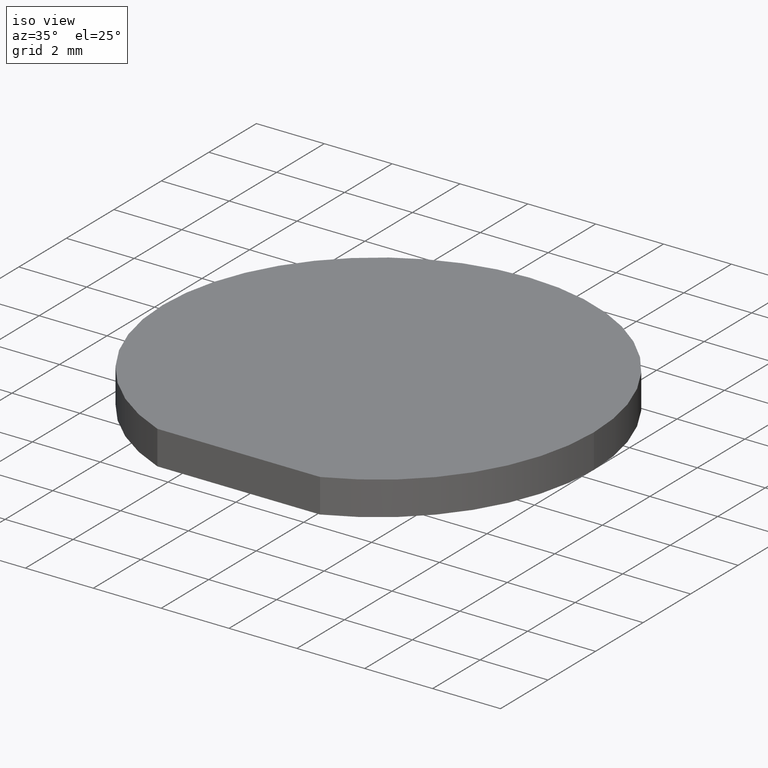
[diagram: clean part render]
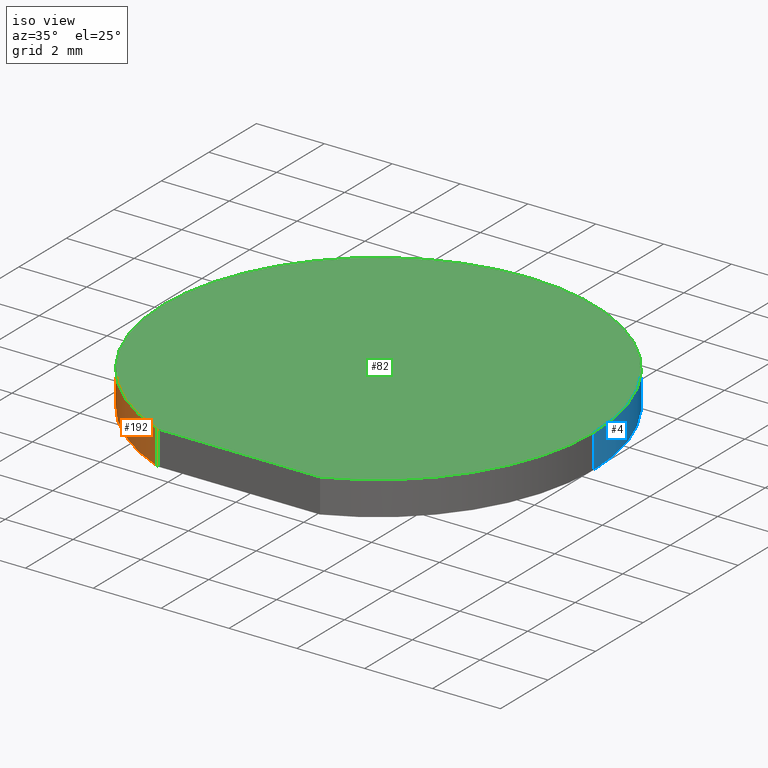
[diagram: same view with three faces highlighted in distinct colors, each labeled with its STEP entity id]
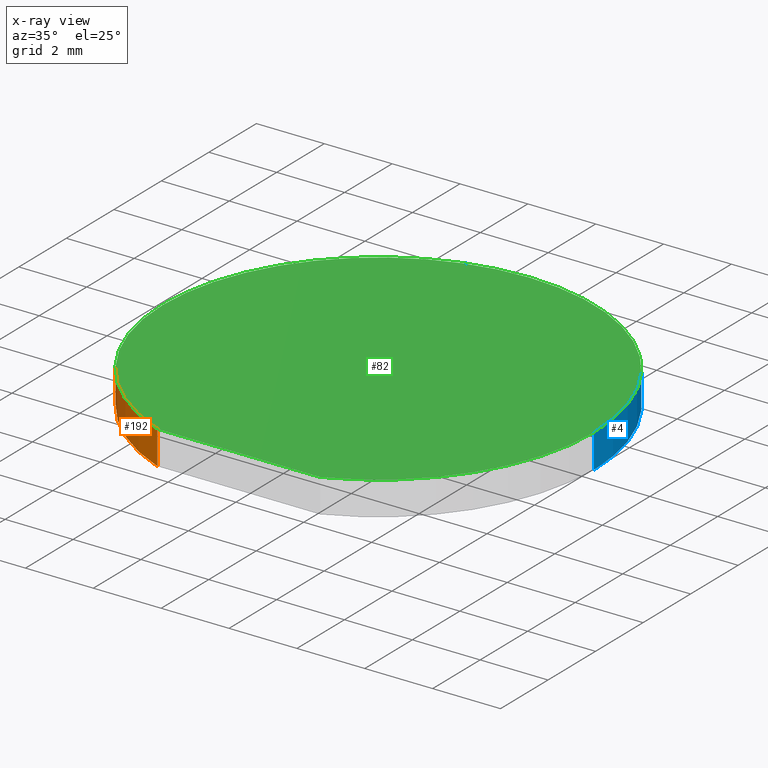
[diagram: x-ray of the same camera — body ghosted, the three highlighted faces saturated]
A machine part, iso view with three faces highlighted in distinct colors.
The next image is the same camera in x-ray (body ghosted, the three faces saturated) — at least one of them is partly hidden behind the body in this view.
Their STEP definitions:

[orange] entity #192 — the highlighted cylindrical surface (partial cylindrical patch) has radius 6.35 mm, axis along (-0, -0, -1).
#7 = VERTEX_POINT ( 'NONE', #53 ) ;
#8 = AXIS2_PLACEMENT_3D ( 'NONE', #169, #133, #86 ) ;
#17 = CARTESIAN_POINT ( 'NONE',  ( -2.397519551536545723, -5.879999999999999893, 1.000000000000000000 ) ) ;
#18 = FACE_OUTER_BOUND ( 'NONE', #78, .T. ) ;
#21 = DIRECTION ( 'NONE',  ( 0.0000000000000000000, 0.0000000000000000000, 1.000000000000000000 ) ) ;
#32 = CARTESIAN_POINT ( 'NONE',  ( 0.0000000000000000000, 0.0000000000000000000, 1.000000000000000000 ) ) ;
#33 = DIRECTION ( 'NONE',  ( 1.000000000000000000, 0.0000000000000000000, 0.0000000000000000000 ) ) ;
#34 = VECTOR ( 'NONE', #122, 1000.000000000000000 ) ;
#35 = DIRECTION ( 'NONE',  ( -0.0000000000000000000, -0.0000000000000000000, -1.000000000000000000 ) ) ;
#53 = CARTESIAN_POINT ( 'NONE',  ( -6.349999999999999645, 0.0000000000000000000, 0.0000000000000000000 ) ) ;
#64 = AXIS2_PLACEMENT_3D ( 'NONE', #111, #35, #89 ) ;
#71 = CARTESIAN_POINT ( 'NONE',  ( -6.349999999999999645, 0.0000000000000000000, 1.000000000000000000 ) ) ;
#72 = EDGE_CURVE ( 'NONE', #99, #7, #204, .T. ) ;
#78 = EDGE_LOOP ( 'NONE', ( #132, #166, #186, #95 ) ) ;
#85 = CIRCLE ( 'NONE', #91, 6.349999999999999645 ) ;
#86 = DIRECTION ( 'NONE',  ( 1.000000000000000000, 0.0000000000000000000, 0.0000000000000000000 ) ) ;
#89 = DIRECTION ( 'NONE',  ( -1.000000000000000000, 0.0000000000000000000, 0.0000000000000000000 ) ) ;
#91 = AXIS2_PLACEMENT_3D ( 'NONE', #32, #196, #33 ) ;
#92 = CARTESIAN_POINT ( 'NONE',  ( -2.397519551536545723, -5.879999999999999893, 0.0000000000000000000 ) ) ;
#94 = EDGE_CURVE ( 'NONE', #7, #185, #101, .T. ) ;
#95 = ORIENTED_EDGE ( 'NONE', *, *, #151, .T. ) ;
#99 = VERTEX_POINT ( 'NONE', #71 ) ;
#101 = CIRCLE ( 'NONE', #8, 6.349999999999999645 ) ;
#107 = CARTESIAN_POINT ( 'NONE',  ( -6.349999999999999645, 0.0000000000000000000, 1.000000000000000000 ) ) ;
#111 = CARTESIAN_POINT ( 'NONE',  ( 0.0000000000000000000, 0.0000000000000000000, 1.000000000000000000 ) ) ;
#113 = VECTOR ( 'NONE', #21, 1000.000000000000000 ) ;
#122 = DIRECTION ( 'NONE',  ( -0.0000000000000000000, -0.0000000000000000000, -1.000000000000000000 ) ) ;
#132 = ORIENTED_EDGE ( 'NONE', *, *, #138, .F. ) ;
#133 = DIRECTION ( 'NONE',  ( 0.0000000000000000000, 0.0000000000000000000, 1.000000000000000000 ) ) ;
#138 = EDGE_CURVE ( 'NONE', #99, #163, #85, .T. ) ;
#151 = EDGE_CURVE ( 'NONE', #185, #163, #160, .T. ) ;
#160 = LINE ( 'NONE', #17, #113 ) ;
#163 = VERTEX_POINT ( 'NONE', #195 ) ;
#166 = ORIENTED_EDGE ( 'NONE', *, *, #72, .T. ) ;
#169 = CARTESIAN_POINT ( 'NONE',  ( 0.0000000000000000000, 0.0000000000000000000, 0.0000000000000000000 ) ) ;
#178 = CYLINDRICAL_SURFACE ( 'NONE', #64, 6.349999999999999645 ) ;
#185 = VERTEX_POINT ( 'NONE', #92 ) ;
#186 = ORIENTED_EDGE ( 'NONE', *, *, #94, .T. ) ;
#192 = ADVANCED_FACE ( 'NONE', ( #18 ), #178, .T. ) ;
#195 = CARTESIAN_POINT ( 'NONE',  ( -2.397519551536545723, -5.879999999999999893, 1.000000000000000000 ) ) ;
#196 = DIRECTION ( 'NONE',  ( 0.0000000000000000000, 0.0000000000000000000, 1.000000000000000000 ) ) ;
#204 = LINE ( 'NONE', #107, #34 ) ;

[blue] entity #4 — the highlighted cylindrical surface (partial cylindrical patch) has radius 6.35 mm, axis along (-0, -0, -1).
#4 = ADVANCED_FACE ( 'NONE', ( #191 ), #55, .T. ) ;
#7 = VERTEX_POINT ( 'NONE', #53 ) ;
#9 = EDGE_CURVE ( 'NONE', #135, #128, #194, .T. ) ;
#11 = DIRECTION ( 'NONE',  ( -0.0000000000000000000, -0.0000000000000000000, -1.000000000000000000 ) ) ;
#14 = CARTESIAN_POINT ( 'NONE',  ( 0.0000000000000000000, 0.0000000000000000000, 1.000000000000000000 ) ) ;
#24 = AXIS2_PLACEMENT_3D ( 'NONE', #14, #168, #189 ) ;
#26 = EDGE_LOOP ( 'NONE', ( #149, #98, #129, #148 ) ) ;
#27 = CARTESIAN_POINT ( 'NONE',  ( 0.0000000000000000000, 0.0000000000000000000, 0.0000000000000000000 ) ) ;
#34 = VECTOR ( 'NONE', #122, 1000.000000000000000 ) ;
#45 = VECTOR ( 'NONE', #11, 1000.000000000000000 ) ;
#53 = CARTESIAN_POINT ( 'NONE',  ( -6.349999999999999645, 0.0000000000000000000, 0.0000000000000000000 ) ) ;
#55 = CYLINDRICAL_SURFACE ( 'NONE', #24, 6.349999999999999645 ) ;
#58 = EDGE_CURVE ( 'NONE', #128, #7, #105, .T. ) ;
#69 = DIRECTION ( 'NONE',  ( 1.000000000000000000, 0.0000000000000000000, 0.0000000000000000000 ) ) ;
#71 = CARTESIAN_POINT ( 'NONE',  ( -6.349999999999999645, 0.0000000000000000000, 1.000000000000000000 ) ) ;
#72 = EDGE_CURVE ( 'NONE', #99, #7, #204, .T. ) ;
#74 = AXIS2_PLACEMENT_3D ( 'NONE', #188, #84, #69 ) ;
#84 = DIRECTION ( 'NONE',  ( 0.0000000000000000000, 0.0000000000000000000, 1.000000000000000000 ) ) ;
#98 = ORIENTED_EDGE ( 'NONE', *, *, #9, .T. ) ;
#99 = VERTEX_POINT ( 'NONE', #71 ) ;
#105 = CIRCLE ( 'NONE', #177, 6.349999999999999645 ) ;
#107 = CARTESIAN_POINT ( 'NONE',  ( -6.349999999999999645, 0.0000000000000000000, 1.000000000000000000 ) ) ;
#119 = DIRECTION ( 'NONE',  ( 0.0000000000000000000, 0.0000000000000000000, 1.000000000000000000 ) ) ;
#120 = CIRCLE ( 'NONE', #74, 6.349999999999999645 ) ;
#122 = DIRECTION ( 'NONE',  ( -0.0000000000000000000, -0.0000000000000000000, -1.000000000000000000 ) ) ;
#125 = EDGE_CURVE ( 'NONE', #135, #99, #120, .T. ) ;
#128 = VERTEX_POINT ( 'NONE', #205 ) ;
#129 = ORIENTED_EDGE ( 'NONE', *, *, #58, .T. ) ;
#135 = VERTEX_POINT ( 'NONE', #207 ) ;
#139 = CARTESIAN_POINT ( 'NONE',  ( 6.349999999999999645, 7.776507174585692163E-16, 1.000000000000000000 ) ) ;
#148 = ORIENTED_EDGE ( 'NONE', *, *, #72, .F. ) ;
#149 = ORIENTED_EDGE ( 'NONE', *, *, #125, .F. ) ;
#168 = DIRECTION ( 'NONE',  ( -0.0000000000000000000, -0.0000000000000000000, -1.000000000000000000 ) ) ;
#177 = AXIS2_PLACEMENT_3D ( 'NONE', #27, #119, #206 ) ;
#188 = CARTESIAN_POINT ( 'NONE',  ( 0.0000000000000000000, 0.0000000000000000000, 1.000000000000000000 ) ) ;
#189 = DIRECTION ( 'NONE',  ( -1.000000000000000000, 0.0000000000000000000, 0.0000000000000000000 ) ) ;
#191 = FACE_OUTER_BOUND ( 'NONE', #26, .T. ) ;
#194 = LINE ( 'NONE', #139, #45 ) ;
#204 = LINE ( 'NONE', #107, #34 ) ;
#205 = CARTESIAN_POINT ( 'NONE',  ( 6.349999999999999645, 7.776507174585692163E-16, 0.0000000000000000000 ) ) ;
#206 = DIRECTION ( 'NONE',  ( 1.000000000000000000, 0.0000000000000000000, 0.0000000000000000000 ) ) ;
#207 = CARTESIAN_POINT ( 'NONE',  ( 6.349999999999999645, 7.776507174585692163E-16, 1.000000000000000000 ) ) ;

[green] entity #82 — the highlighted planar face has unit normal (0, 0, 1).
#16 = VECTOR ( 'NONE', #127, 1000.000000000000000 ) ;
#19 = EDGE_CURVE ( 'NONE', #150, #135, #167, .T. ) ;
#23 = ORIENTED_EDGE ( 'NONE', *, *, #157, .F. ) ;
#32 = CARTESIAN_POINT ( 'NONE',  ( 0.0000000000000000000, 0.0000000000000000000, 1.000000000000000000 ) ) ;
#33 = DIRECTION ( 'NONE',  ( 1.000000000000000000, 0.0000000000000000000, 0.0000000000000000000 ) ) ;
#42 = DIRECTION ( 'NONE',  ( 0.0000000000000000000, 0.0000000000000000000, 1.000000000000000000 ) ) ;
#43 = DIRECTION ( 'NONE',  ( 0.0000000000000000000, 0.0000000000000000000, 1.000000000000000000 ) ) ;
#56 = FACE_OUTER_BOUND ( 'NONE', #165, .T. ) ;
#60 = CARTESIAN_POINT ( 'NONE',  ( 2.397519551536546167, -5.879999999999999893, 1.000000000000000000 ) ) ;
#69 = DIRECTION ( 'NONE',  ( 1.000000000000000000, 0.0000000000000000000, 0.0000000000000000000 ) ) ;
#71 = CARTESIAN_POINT ( 'NONE',  ( -6.349999999999999645, 0.0000000000000000000, 1.000000000000000000 ) ) ;
#74 = AXIS2_PLACEMENT_3D ( 'NONE', #188, #84, #69 ) ;
#82 = ADVANCED_FACE ( 'NONE', ( #56 ), #171, .T. ) ;
#84 = DIRECTION ( 'NONE',  ( 0.0000000000000000000, 0.0000000000000000000, 1.000000000000000000 ) ) ;
#85 = CIRCLE ( 'NONE', #91, 6.349999999999999645 ) ;
#91 = AXIS2_PLACEMENT_3D ( 'NONE', #32, #196, #33 ) ;
#99 = VERTEX_POINT ( 'NONE', #71 ) ;
#102 = CARTESIAN_POINT ( 'NONE',  ( 0.0000000000000000000, 0.0000000000000000000, 1.000000000000000000 ) ) ;
#114 = ORIENTED_EDGE ( 'NONE', *, *, #125, .T. ) ;
#116 = AXIS2_PLACEMENT_3D ( 'NONE', #152, #42, #154 ) ;
#120 = CIRCLE ( 'NONE', #74, 6.349999999999999645 ) ;
#123 = CARTESIAN_POINT ( 'NONE',  ( -5.887338073691013918, -5.879999999999999893, 1.000000000000000000 ) ) ;
#125 = EDGE_CURVE ( 'NONE', #135, #99, #120, .T. ) ;
#127 = DIRECTION ( 'NONE',  ( -1.000000000000000000, -0.0000000000000000000, -0.0000000000000000000 ) ) ;
#135 = VERTEX_POINT ( 'NONE', #207 ) ;
#137 = DIRECTION ( 'NONE',  ( 1.000000000000000000, 0.0000000000000000000, 0.0000000000000000000 ) ) ;
#138 = EDGE_CURVE ( 'NONE', #99, #163, #85, .T. ) ;
#147 = ORIENTED_EDGE ( 'NONE', *, *, #138, .T. ) ;
#150 = VERTEX_POINT ( 'NONE', #60 ) ;
#152 = CARTESIAN_POINT ( 'NONE',  ( 0.0000000000000000000, 0.0000000000000000000, 1.000000000000000000 ) ) ;
#154 = DIRECTION ( 'NONE',  ( 1.000000000000000000, 0.0000000000000000000, -0.0000000000000000000 ) ) ;
#157 = EDGE_CURVE ( 'NONE', #150, #163, #198, .T. ) ;
#163 = VERTEX_POINT ( 'NONE', #195 ) ;
#165 = EDGE_LOOP ( 'NONE', ( #23, #182, #114, #147 ) ) ;
#167 = CIRCLE ( 'NONE', #201, 6.349999999999999645 ) ;
#171 = PLANE ( 'NONE',  #116 ) ;
#182 = ORIENTED_EDGE ( 'NONE', *, *, #19, .T. ) ;
#188 = CARTESIAN_POINT ( 'NONE',  ( 0.0000000000000000000, 0.0000000000000000000, 1.000000000000000000 ) ) ;
#195 = CARTESIAN_POINT ( 'NONE',  ( -2.397519551536545723, -5.879999999999999893, 1.000000000000000000 ) ) ;
#196 = DIRECTION ( 'NONE',  ( 0.0000000000000000000, 0.0000000000000000000, 1.000000000000000000 ) ) ;
#198 = LINE ( 'NONE', #123, #16 ) ;
#201 = AXIS2_PLACEMENT_3D ( 'NONE', #102, #43, #137 ) ;
#207 = CARTESIAN_POINT ( 'NONE',  ( 6.349999999999999645, 7.776507174585692163E-16, 1.000000000000000000 ) ) ;